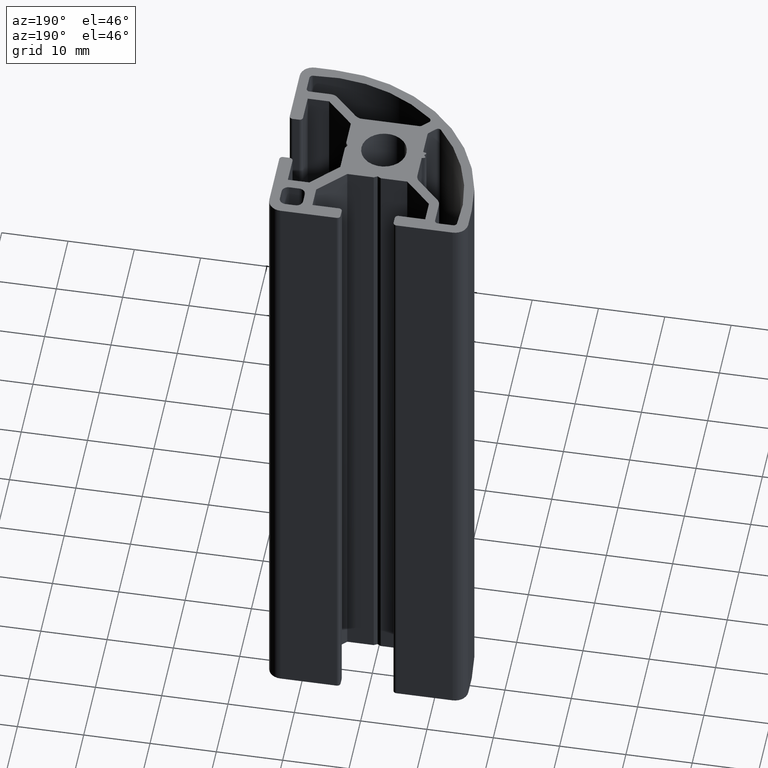
[diagram: clean part render]
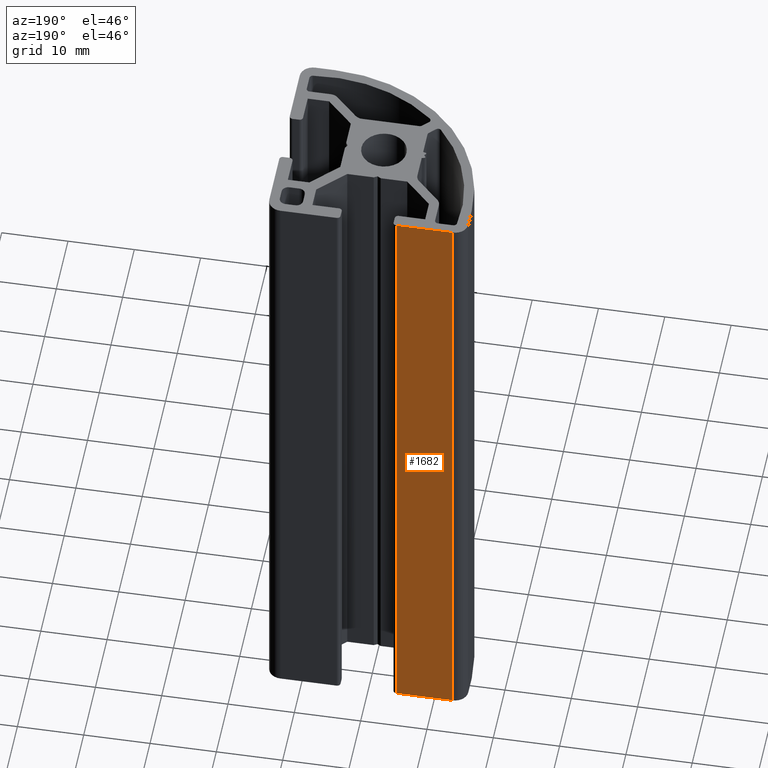
[diagram: same view with one face highlighted and labeled with its STEP entity id]
A machine part, auxiliary view. The second image highlights one B-rep face of the part: STEP entity #1682.
In plain terms, the highlighted planar face has unit normal (0, 1, 0).
Its self-contained STEP definition (entity closure, byte-faithful):
#68=PLANE('',#1828);
#149=FACE_OUTER_BOUND('',#234,.T.);
#234=EDGE_LOOP('',(#1379,#1380,#1381,#1382));
#340=LINE('',#2591,#519);
#416=LINE('',#2780,#595);
#417=LINE('',#2782,#596);
#418=LINE('',#2783,#597);
#519=VECTOR('',#2104,100.);
#595=VECTOR('',#2280,8.50000003915042);
#596=VECTOR('',#2281,100.);
#597=VECTOR('',#2282,8.50000003915042);
#765=VERTEX_POINT('',#2585);
#767=VERTEX_POINT('',#2589);
#830=VERTEX_POINT('',#2779);
#831=VERTEX_POINT('',#2781);
#970=EDGE_CURVE('',#765,#767,#340,.T.);
#1064=EDGE_CURVE('',#830,#767,#416,.T.);
#1065=EDGE_CURVE('',#830,#831,#417,.T.);
#1066=EDGE_CURVE('',#831,#765,#418,.T.);
#1379=ORIENTED_EDGE('',*,*,#970,.T.);
#1380=ORIENTED_EDGE('',*,*,#1064,.F.);
#1381=ORIENTED_EDGE('',*,*,#1065,.T.);
#1382=ORIENTED_EDGE('',*,*,#1066,.T.);
#1682=ADVANCED_FACE('',(#149),#68,.T.);
#1828=AXIS2_PLACEMENT_3D('',#2778,#2278,#2279);
#2104=DIRECTION('',(0.,0.,-1.));
#2278=DIRECTION('center_axis',(1.51799940237017E-11,1.,0.));
#2279=DIRECTION('ref_axis',(-1.,1.51800350067788E-11,0.));
#2280=DIRECTION('',(1.,-1.51799940237017E-11,0.));
#2281=DIRECTION('',(0.,0.,1.));
#2282=DIRECTION('',(1.,-1.51799940237017E-11,0.));
#2585=CARTESIAN_POINT('',(-4.49999995237285,15.0000000479329,100.));
#2589=CARTESIAN_POINT('',(-4.49999995237285,15.0000000479329,0.));
#2591=CARTESIAN_POINT('',(-4.49999995236532,14.9999999961942,0.));
#2778=CARTESIAN_POINT('Origin',(12.9999999917377,14.9999999959286,0.));
#2779=CARTESIAN_POINT('',(-12.9999999915233,14.9999999963232,0.));
#2780=CARTESIAN_POINT('',(6.49999999598268,14.9999999960272,0.));
#2781=CARTESIAN_POINT('',(-12.9999999915233,14.9999999963232,100.));
#2782=CARTESIAN_POINT('',(-12.9999999915233,14.9999999963232,0.));
#2783=CARTESIAN_POINT('',(6.49999999598268,14.9999999960272,100.));